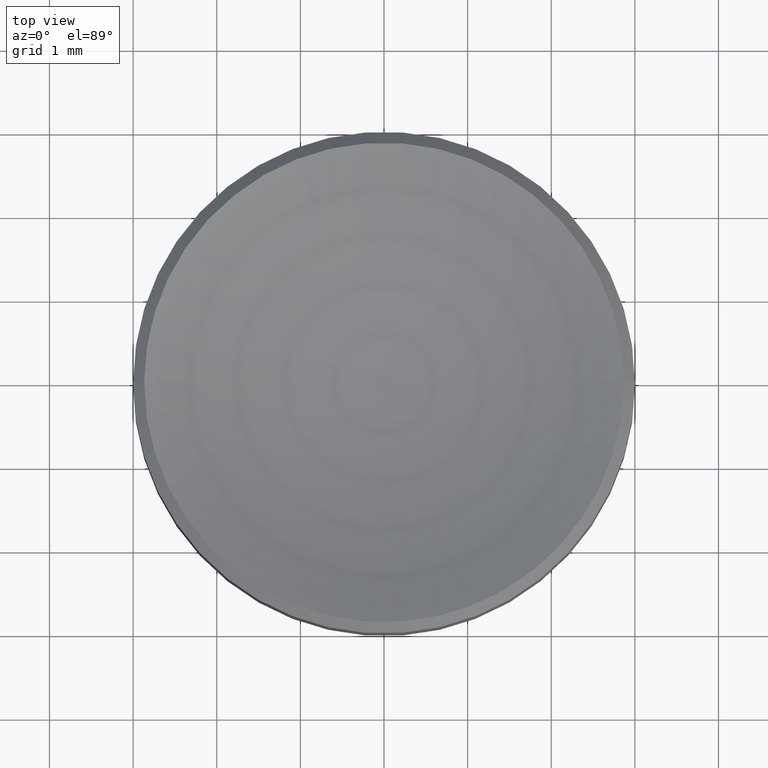
[diagram: clean part render]
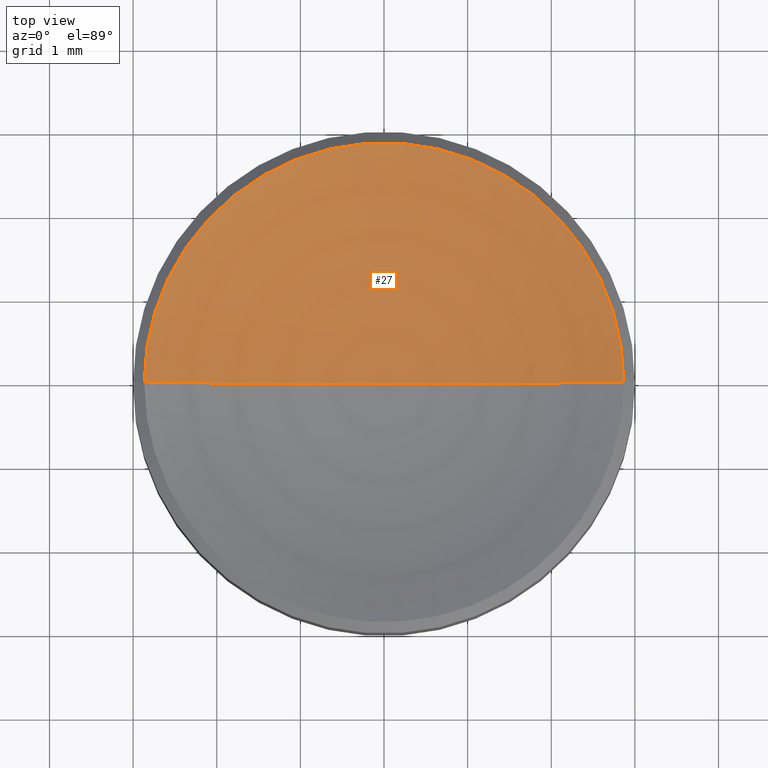
[diagram: same view with one face highlighted and labeled with its STEP entity id]
A machine part, top view. The second image highlights one B-rep face of the part: STEP entity #27.
In plain terms, the highlighted toroidal blend (fillet) surface has major radius 0.0022 mm and minor (blend) radius 6.46 mm.
Its self-contained STEP definition (entity closure, byte-faithful):
#19 = AXIS2_PLACEMENT_3D ( 'NONE', #217, #39, #120 ) ;
#25 = CIRCLE ( 'NONE', #219, 6.459999999999999076 ) ;
#27 = ADVANCED_FACE ( 'NONE', ( #112 ), #110, .F. ) ;
#29 = CIRCLE ( 'NONE', #225, 2.867573379116970411 ) ;
#39 = DIRECTION ( 'NONE',  ( -0.000000000000000000, -0.000000000000000000, 1.000000000000000000 ) ) ;
#45 = CIRCLE ( 'NONE', #161, 6.459999999999999076 ) ;
#58 = ORIENTED_EDGE ( 'NONE', *, *, #90, .F. ) ;
#63 = DIRECTION ( 'NONE',  ( -1.000000000000000000, 1.224646799147352961E-16, 0.000000000000000000 ) ) ;
#64 = CARTESIAN_POINT ( 'NONE',  ( 2.867573379116970411, 0.000000000000000000, 2.172426620883027404 ) ) ;
#66 = DIRECTION ( 'NONE',  ( -0.000000000000000000, -0.000000000000000000, 1.000000000000000000 ) ) ;
#69 = DIRECTION ( 'NONE',  ( 0.000000000000000000, -1.000000000000000000, 0.000000000000000000 ) ) ;
#85 = CARTESIAN_POINT ( 'NONE',  ( 0.000000000000000000, 0.000000000000000000, 2.172426620883026960 ) ) ;
#90 = EDGE_CURVE ( 'NONE', #258, #139, #25, .T. ) ;
#96 = CARTESIAN_POINT ( 'NONE',  ( -2.867573379116970411, 3.511764560055757538E-16, 2.172426620883027404 ) ) ;
#101 = DIRECTION ( 'NONE',  ( 1.224646799147353207E-16, 1.000000000000000000, 0.000000000000000000 ) ) ;
#110 = TOROIDAL_SURFACE ( 'NONE', #19, -0.002199907603219397254, 6.459999999999999076 ) ;
#112 = FACE_OUTER_BOUND ( 'NONE', #259, .T. ) ;
#120 = DIRECTION ( 'NONE',  ( 1.000000000000000000, 0.000000000000000000, 0.000000000000000000 ) ) ;
#131 = DIRECTION ( 'NONE',  ( 1.000000000000000000, 0.000000000000000000, 0.000000000000000000 ) ) ;
#136 = VERTEX_POINT ( 'NONE', #64 ) ;
#137 = ORIENTED_EDGE ( 'NONE', *, *, #215, .T. ) ;
#139 = VERTEX_POINT ( 'NONE', #96 ) ;
#149 = DIRECTION ( 'NONE',  ( 0.000000000000000000, 0.000000000000000000, -1.000000000000000000 ) ) ;
#161 = AXIS2_PLACEMENT_3D ( 'NONE', #228, #69, #149 ) ;
#206 = CARTESIAN_POINT ( 'NONE',  ( 0.000000000000000000, 0.000000000000000000, 1.500000000000000000 ) ) ;
#215 = EDGE_CURVE ( 'NONE', #136, #139, #29, .T. ) ;
#217 = CARTESIAN_POINT ( 'NONE',  ( 0.000000000000000000, 0.000000000000000000, 7.959999625418450186 ) ) ;
#219 = AXIS2_PLACEMENT_3D ( 'NONE', #241, #101, #63 ) ;
#223 = EDGE_CURVE ( 'NONE', #258, #136, #45, .T. ) ;
#225 = AXIS2_PLACEMENT_3D ( 'NONE', #85, #66, #131 ) ;
#228 = CARTESIAN_POINT ( 'NONE',  ( -0.002199907603219397254, 0.000000000000000000, 7.959999625418450186 ) ) ;
#232 = ORIENTED_EDGE ( 'NONE', *, *, #223, .T. ) ;
#241 = CARTESIAN_POINT ( 'NONE',  ( 0.002199907603219397254, -2.694109804702560429E-19, 7.959999625418450186 ) ) ;
#258 = VERTEX_POINT ( 'NONE', #206 ) ;
#259 = EDGE_LOOP ( 'NONE', ( #58, #232, #137 ) ) ;